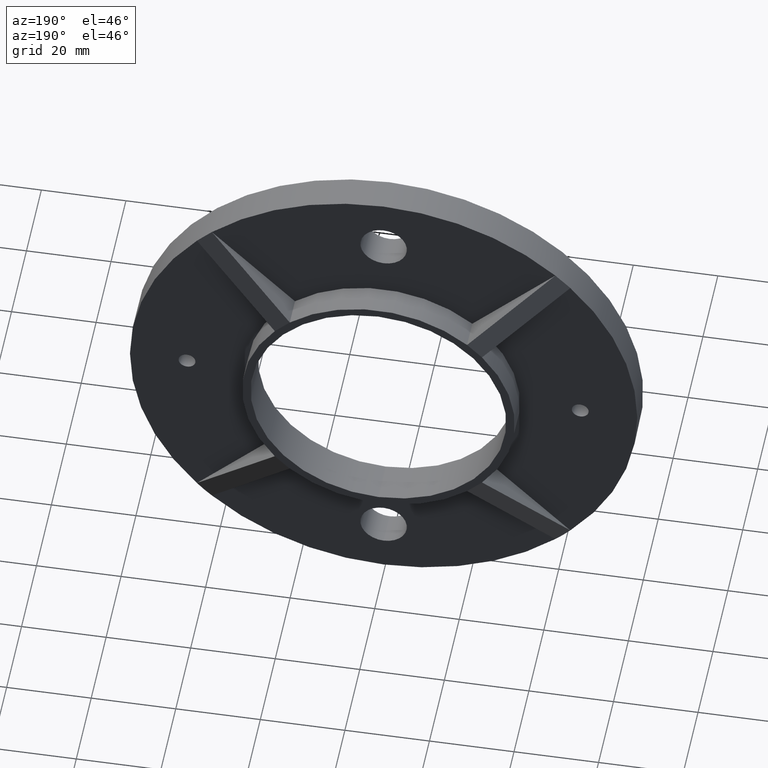
[diagram: clean part render]
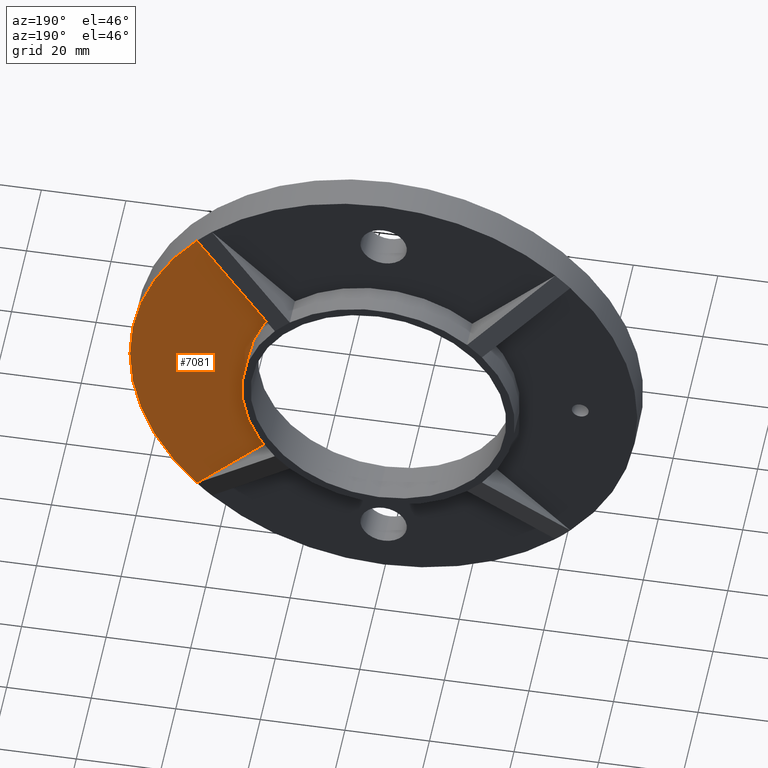
[diagram: same view with one face highlighted and labeled with its STEP entity id]
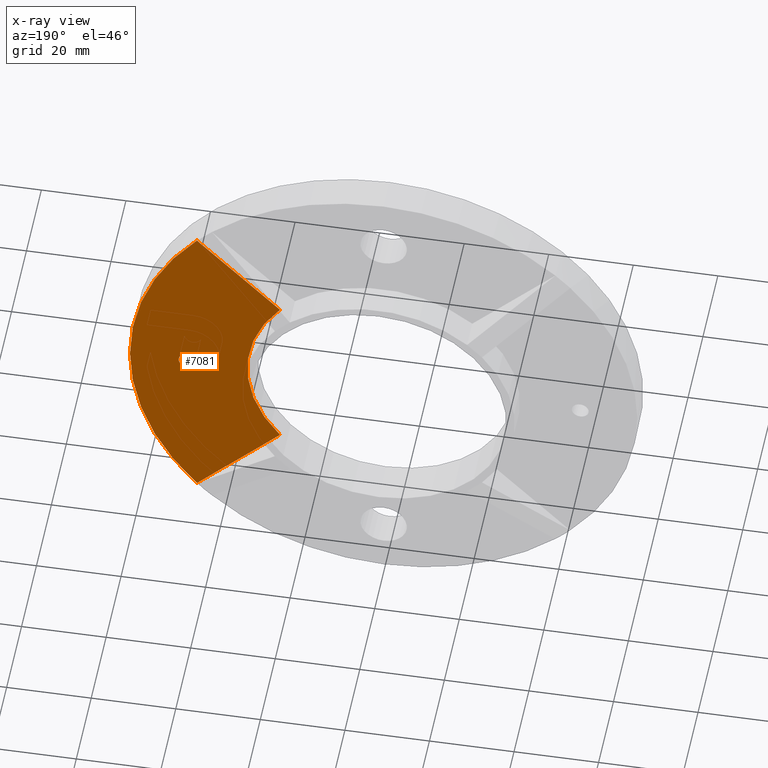
[diagram: x-ray of the same camera — body ghosted, the highlighted face saturated]
A machine part, auxiliary view. The second image highlights one B-rep face of the part: STEP entity #7081.
The next image is the same camera in x-ray: the body ghosted, the highlighted face saturated — about 0% of this face is hidden behind the body in this view.
In plain terms, the highlighted planar face has unit normal (0, 1, 0).
Its self-contained STEP definition (entity closure, byte-faithful):
#16 = EDGE_LOOP ( 'NONE', ( #9504 ) ) ;
#598 = EDGE_CURVE ( 'NONE', #4310, #4310, #3069, .T. ) ;
#870 = LINE ( 'NONE', #12664, #8703 ) ;
#999 = DIRECTION ( 'NONE',  ( 0.000000000000000000, -0.000000000000000000, 1.000000000000000000 ) ) ;
#1125 = VERTEX_POINT ( 'NONE', #11133 ) ;
#1409 = EDGE_CURVE ( 'NONE', #2507, #11001, #5621, .T. ) ;
#1491 = FACE_OUTER_BOUND ( 'NONE', #9751, .T. ) ;
#2507 = VERTEX_POINT ( 'NONE', #9362 ) ;
#2906 = DIRECTION ( 'NONE',  ( 0.000000000000000000, 1.000000000000000000, 0.000000000000000000 ) ) ;
#3069 = CIRCLE ( 'NONE', #10321, 2.000000000000003109 ) ;
#3075 = ORIENTED_EDGE ( 'NONE', *, *, #6898, .F. ) ;
#3243 = FACE_BOUND ( 'NONE', #16, .T. ) ;
#3426 = CIRCLE ( 'NONE', #12771, 60.00000000000000000 ) ;
#3637 = DIRECTION ( 'NONE',  ( -0.7071067811865451302, -0.000000000000000000, -0.7071067811865499042 ) ) ;
#4310 = VERTEX_POINT ( 'NONE', #7837 ) ;
#4818 = CARTESIAN_POINT ( 'NONE',  ( 46.50000000000000000, 8.000000000000000000, 0.000000000000000000 ) ) ;
#5017 = PLANE ( 'NONE',  #7313 ) ;
#5061 = DIRECTION ( 'NONE',  ( 0.000000000000000000, 0.000000000000000000, 1.000000000000000000 ) ) ;
#5589 = CARTESIAN_POINT ( 'NONE',  ( 0.000000000000000000, 8.000000000000000000, 0.000000000000000000 ) ) ;
#5621 = LINE ( 'NONE', #10821, #7202 ) ;
#5710 = EDGE_CURVE ( 'NONE', #2507, #13072, #3426, .T. ) ;
#5742 = DIRECTION ( 'NONE',  ( 0.000000000000000000, 1.000000000000000000, -0.000000000000000000 ) ) ;
#6674 = ORIENTED_EDGE ( 'NONE', *, *, #1409, .F. ) ;
#6898 = EDGE_CURVE ( 'NONE', #1125, #13072, #870, .T. ) ;
#6932 = DIRECTION ( 'NONE',  ( 0.000000000000000000, 1.000000000000000000, 0.000000000000000000 ) ) ;
#7081 = ADVANCED_FACE ( 'NONE', ( #3243, #1491 ), #5017, .T. ) ;
#7127 = EDGE_CURVE ( 'NONE', #11001, #1125, #7563, .T. ) ;
#7202 = VECTOR ( 'NONE', #3637, 1000.000000000000114 ) ;
#7256 = ORIENTED_EDGE ( 'NONE', *, *, #5710, .T. ) ;
#7313 = AXIS2_PLACEMENT_3D ( 'NONE', #13017, #6932, #999 ) ;
#7563 = CIRCLE ( 'NONE', #12075, 32.25000000000000000 ) ;
#7837 = CARTESIAN_POINT ( 'NONE',  ( 46.50000000000000000, 8.000000000000000000, -2.000000000000003109 ) ) ;
#8645 = DIRECTION ( 'NONE',  ( 0.7071067811865496822, 0.000000000000000000, -0.7071067811865454633 ) ) ;
#8703 = VECTOR ( 'NONE', #8645, 1000.000000000000114 ) ;
#8981 = ORIENTED_EDGE ( 'NONE', *, *, #7127, .F. ) ;
#9352 = CARTESIAN_POINT ( 'NONE',  ( 44.15732934749915728, 8.000000000000000000, -40.62179544156668953 ) ) ;
#9362 = CARTESIAN_POINT ( 'NONE',  ( 44.15732934749923544, 7.999999999999998224, 40.62179544156661848 ) ) ;
#9504 = ORIENTED_EDGE ( 'NONE', *, *, #598, .F. ) ;
#9751 = EDGE_LOOP ( 'NONE', ( #7256, #3075, #8981, #6674 ) ) ;
#10321 = AXIS2_PLACEMENT_3D ( 'NONE', #4818, #5742, #11912 ) ;
#10821 = CARTESIAN_POINT ( 'NONE',  ( 24.50333930116116576, 8.000000000000000000, 20.96780539522842446 ) ) ;
#11001 = VERTEX_POINT ( 'NONE', #11728 ) ;
#11133 = CARTESIAN_POINT ( 'NONE',  ( 24.50333930116116932, 8.000000000000000000, -20.96780539522843512 ) ) ;
#11673 = DIRECTION ( 'NONE',  ( 0.000000000000000000, 0.000000000000000000, 1.000000000000000000 ) ) ;
#11728 = CARTESIAN_POINT ( 'NONE',  ( 24.50333930116117287, 8.000000000000000000, 20.96780539522842801 ) ) ;
#11912 = DIRECTION ( 'NONE',  ( 0.000000000000000000, 0.000000000000000000, -1.000000000000000000 ) ) ;
#12073 = CARTESIAN_POINT ( 'NONE',  ( 0.000000000000000000, 8.000000000000000000, 0.000000000000000000 ) ) ;
#12075 = AXIS2_PLACEMENT_3D ( 'NONE', #12073, #2906, #5061 ) ;
#12664 = CARTESIAN_POINT ( 'NONE',  ( 24.50333930116116932, 8.000000000000000000, -20.96780539522843512 ) ) ;
#12700 = DIRECTION ( 'NONE',  ( 0.000000000000000000, 1.000000000000000000, 0.000000000000000000 ) ) ;
#12771 = AXIS2_PLACEMENT_3D ( 'NONE', #5589, #12700, #11673 ) ;
#13017 = CARTESIAN_POINT ( 'NONE',  ( 0.000000000000000000, 8.000000000000000000, 0.000000000000000000 ) ) ;
#13072 = VERTEX_POINT ( 'NONE', #9352 ) ;